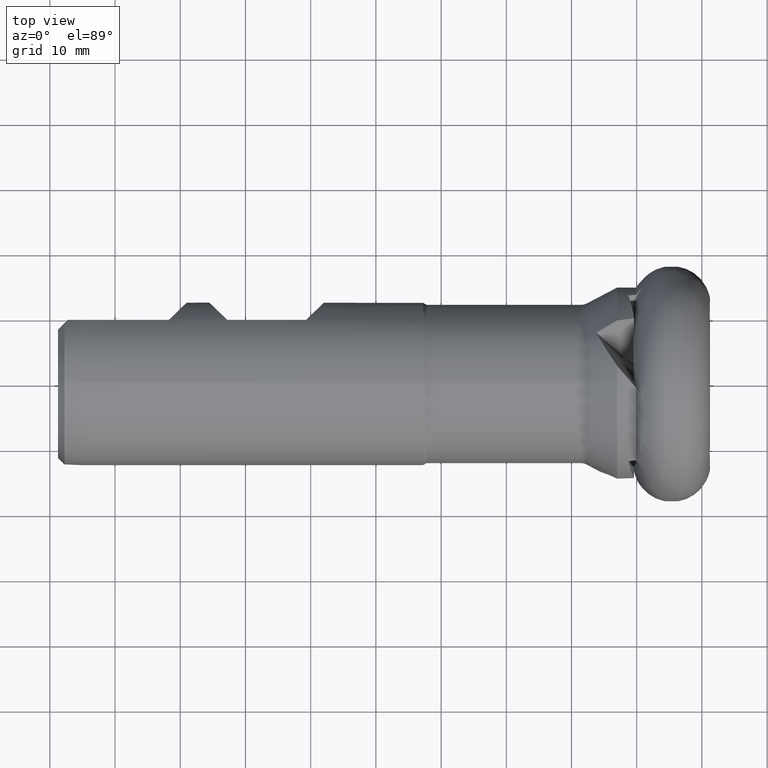
[diagram: clean part render]
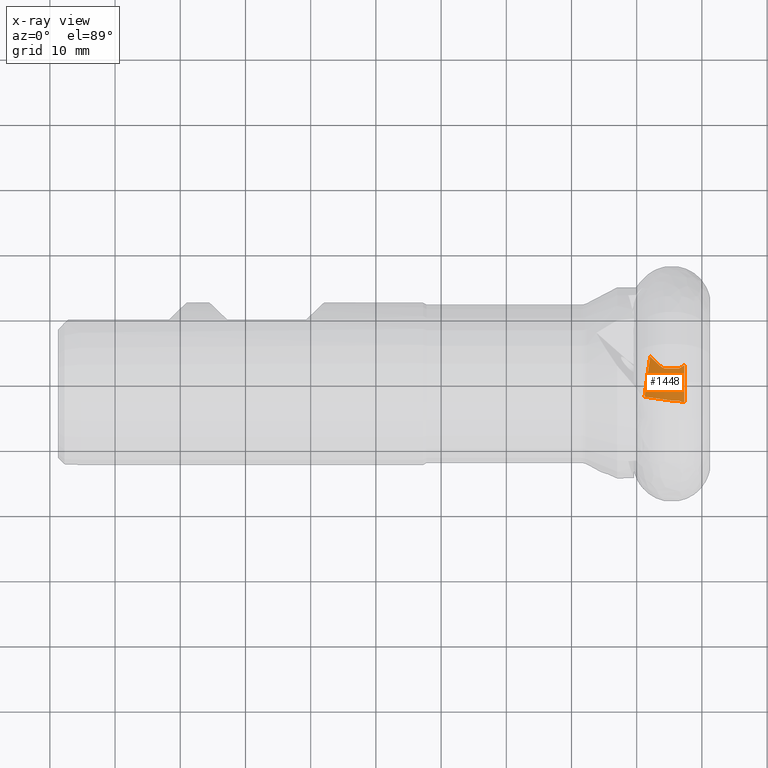
[diagram: x-ray — body ghosted, one internal face saturated and labeled with its STEP entity id]
A machine part, top view, then the same camera in x-ray: the body is ghosted and one INTERNAL B-rep face — a face not visible from any outside direction — is saturated and labeled: STEP entity #1448.
In plain terms, the highlighted planar face has unit normal (0, -0, 1).
Its self-contained STEP definition (entity closure, byte-faithful):
#60 = CARTESIAN_POINT ( 'NONE',  ( -7.927049395022374200, 4.276488123442879500, -5.674999999999998900 ) ) ;
#188 = VERTEX_POINT ( 'NONE', #5334 ) ;
#257 = VECTOR ( 'NONE', #715, 1000.000000000000100 ) ;
#286 = VECTOR ( 'NONE', #308, 999.9999999999998900 ) ;
#306 = VERTEX_POINT ( 'NONE', #60 ) ;
#308 = DIRECTION ( 'NONE',  ( 0.9902680687415703600, -0.1391731009600658000, -7.164989565881888300E-017 ) ) ;
#349 = CARTESIAN_POINT ( 'NONE',  ( -3.795018128566869800, -2.441868605784953200, -5.675000000000003400 ) ) ;
#379 = CARTESIAN_POINT ( 'NONE',  ( -3.507925750679289100, -2.458189465135163700, -5.674999999999996300 ) ) ;
#527 = CARTESIAN_POINT ( 'NONE',  ( -3.116825711614337200, 2.659176578575708700, -5.674999999999997200 ) ) ;
#596 = VERTEX_POINT ( 'NONE', #4766 ) ;
#646 = EDGE_CURVE ( 'NONE', #2391, #3166, #3128, .T. ) ;
#690 = ORIENTED_EDGE ( 'NONE', *, *, #4836, .T. ) ;
#704 = CARTESIAN_POINT ( 'NONE',  ( -3.130213182418695200, -2.658594191422533700, -5.674999999999994500 ) ) ;
#715 = DIRECTION ( 'NONE',  ( 0.9902680687415702500, -0.1391731009600657200, -8.673617379884033000E-017 ) ) ;
#783 = ORIENTED_EDGE ( 'NONE', *, *, #5460, .F. ) ;
#786 = CARTESIAN_POINT ( 'NONE',  ( -2.700000000000002800, -2.719056711179629100, -5.674999999999999800 ) ) ;
#811 = CARTESIAN_POINT ( 'NONE',  ( -4.584473237149222100, 2.448360186430850800, -5.674999999999999800 ) ) ;
#833 = CARTESIAN_POINT ( 'NONE',  ( -5.748785001168230700, 2.462505344465269800, -5.675000000000000700 ) ) ;
#872 = CARTESIAN_POINT ( 'NONE',  ( -5.278302686614056300, 2.453369671326167500, -5.674999999999998900 ) ) ;
#884 = VECTOR ( 'NONE', #1314, 1000.000000000000000 ) ;
#927 = CARTESIAN_POINT ( 'NONE',  ( -2.904097449524851300, 2.799078900394980100, -5.675000000000011400 ) ) ;
#952 = CARTESIAN_POINT ( 'NONE',  ( -3.367830951287358300, 2.522679742282135000, -5.674999999999998000 ) ) ;
#1206 = CARTESIAN_POINT ( 'NONE',  ( -3.987183856976040700, -2.445110270643454000, -5.675000000000003400 ) ) ;
#1255 = CARTESIAN_POINT ( 'NONE',  ( -4.332143144972512500, 2.450413129325212000, -5.674999999999998900 ) ) ;
#1277 = CARTESIAN_POINT ( 'NONE',  ( -3.543915546626220400, 2.452596159926813800, -5.674999999999998000 ) ) ;
#1278 = ORIENTED_EDGE ( 'NONE', *, *, #4975, .F. ) ;
#1292 = CARTESIAN_POINT ( 'NONE',  ( -5.530503027789745100, 2.449003850583708600, -5.674999999999999800 ) ) ;
#1314 = DIRECTION ( 'NONE',  ( 0.0000000000000000000, 1.000000000000000000, 1.207134227299581700E-017 ) ) ;
#1343 = DIRECTION ( 'NONE',  ( 1.000000000000000000, 0.0000000000000000000, -8.589206331781081800E-017 ) ) ;
#1356 = CARTESIAN_POINT ( 'NONE',  ( -3.395792749768561200, 2.507636555540783800, -5.674999999999997200 ) ) ;
#1414 = DIRECTION ( 'NONE',  ( 0.1391731009600657400, 0.9902680687415703600, -0.0000000000000000000 ) ) ;
#1448 = ADVANCED_FACE ( 'Fl�che3', ( #5149 ), #4034, .F. ) ;
#1712 = CARTESIAN_POINT ( 'NONE',  ( -5.089108444960179300, 2.449146315905086400, -5.674999999999999800 ) ) ;
#1733 = CARTESIAN_POINT ( 'NONE',  ( -3.603037048051418000, -2.448063440408133400, -5.675000000000662400 ) ) ;
#1751 = CARTESIAN_POINT ( 'NONE',  ( -3.452570492418392900, 2.479004258722722600, -5.674999999999999800 ) ) ;
#1977 = VECTOR ( 'NONE', #4741, 999.9999999999998900 ) ;
#2095 = LINE ( 'NONE', #4081, #884 ) ;
#2110 = CARTESIAN_POINT ( 'NONE',  ( -4.115268473655298500, -2.450905831316273300, -5.674999999999998900 ) ) ;
#2227 = CARTESIAN_POINT ( 'NONE',  ( -7.927049395022374200, 4.276488123442879500, -5.674999999999998900 ) ) ;
#2353 = CARTESIAN_POINT ( 'NONE',  ( -8.711294831866508700, -1.268327774355765700, -5.674999999999998900 ) ) ;
#2391 = VERTEX_POINT ( 'NONE', #704 ) ;
#2564 = CARTESIAN_POINT ( 'NONE',  ( -7.931925466490141300, 4.277173410597027800, -5.674999999999998900 ) ) ;
#2572 = CARTESIAN_POINT ( 'NONE',  ( -4.371572118352265300, -2.450674111908415200, -5.674999999999997200 ) ) ;
#2611 = CARTESIAN_POINT ( 'NONE',  ( -3.417305001762579700, -2.496557038204093400, -5.674999999999998000 ) ) ;
#2646 = CARTESIAN_POINT ( 'NONE',  ( -3.953663440018550600, 2.445600481359580900, -5.674999999999999800 ) ) ;
#2681 = CARTESIAN_POINT ( 'NONE',  ( -5.890863607234966700, 2.529419374682389900, -5.674999999999995400 ) ) ;
#2788 = ORIENTED_EDGE ( 'NONE', *, *, #4334, .T. ) ;
#2966 = CARTESIAN_POINT ( 'NONE',  ( -8.794798692442547900, -1.862488615600707900, -5.674999999999998900 ) ) ;
#3035 = CARTESIAN_POINT ( 'NONE',  ( -3.358961855400013400, -2.527374090802709800, -5.674999999999997200 ) ) ;
#3100 = CARTESIAN_POINT ( 'NONE',  ( -7.596566397045688900, 3.898724333538343700, -5.675000000000001600 ) ) ;
#3101 = CARTESIAN_POINT ( 'NONE',  ( -3.330002475528241600, -2.543147532725988900, -5.674999999999996300 ) ) ;
#3120 = CARTESIAN_POINT ( 'NONE',  ( -3.669799037096472400, 2.444355654949193800, -5.675000000000003400 ) ) ;
#3128 = LINE ( 'NONE', #2966, #1977 ) ;
#3141 = CARTESIAN_POINT ( 'NONE',  ( -6.159180722849916000, 2.692475147406940400, -5.675000000000000700 ) ) ;
#3155 = AXIS2_PLACEMENT_3D ( 'NONE', #5887, #5424, #1343 ) ;
#3157 = CARTESIAN_POINT ( 'NONE',  ( -5.341380622826671100, 2.454607007969276100, -5.674999999999997200 ) ) ;
#3166 = VERTEX_POINT ( 'NONE', #786 ) ;
#3269 = VERTEX_POINT ( 'NONE', #4627 ) ;
#3520 = CARTESIAN_POINT ( 'NONE',  ( -4.499743228060717500, -2.448923271273626400, -5.675000000000000700 ) ) ;
#3563 = CARTESIAN_POINT ( 'NONE',  ( -5.835790673377279500, 2.498651383668931500, -5.674999999999998900 ) ) ;
#3566 = CARTESIAN_POINT ( 'NONE',  ( -3.539500415944141700, -2.453890993534749900, -5.675000000000664200 ) ) ;
#3601 = CARTESIAN_POINT ( 'NONE',  ( -6.670160600050162500, 3.054321684800215900, -5.674999999999998000 ) ) ;
#3619 = CARTESIAN_POINT ( 'NONE',  ( -6.053122102018128300, 2.624960761166975900, -5.674999999999994500 ) ) ;
#4005 = CARTESIAN_POINT ( 'NONE',  ( -5.625032771401871300, 2.445071183064423600, -5.674999999999997200 ) ) ;
#4023 = CARTESIAN_POINT ( 'NONE',  ( -3.634931831818627200, -2.446053968012244600, -5.674999999999998000 ) ) ;
#4034 = PLANE ( 'NONE',  #3155 ) ;
#4043 = CARTESIAN_POINT ( 'NONE',  ( -3.638233003795901900, 2.445849631260830700, -5.674999999999999800 ) ) ;
#4061 = CARTESIAN_POINT ( 'NONE',  ( -6.471504264827855100, 2.901852150475815700, -5.675000000000000700 ) ) ;
#4080 = CARTESIAN_POINT ( 'NONE',  ( -4.962964042372305200, 2.447496540115066600, -5.674999999999998900 ) ) ;
#4081 = CARTESIAN_POINT ( 'NONE',  ( -2.700000000000002800, 7.599999999999999600, -5.674999999999998900 ) ) ;
#4095 = VERTEX_POINT ( 'NONE', #4440 ) ;
#4334 = EDGE_CURVE ( 'NONE', #306, #4095, #5314, .T. ) ;
#4440 = CARTESIAN_POINT ( 'NONE',  ( -2.700000000000002800, 2.950981464700452900, -5.674999999999998900 ) ) ;
#4465 = CARTESIAN_POINT ( 'NONE',  ( -3.186476261105579200, -2.624199979885578800, -5.674999999999997200 ) ) ;
#4482 = CARTESIAN_POINT ( 'NONE',  ( -4.205977035205166600, 2.451983529472977300, -5.674999999999999800 ) ) ;
#4503 = CARTESIAN_POINT ( 'NONE',  ( -3.482207927801477700, 2.465638047264838900, -5.674999999999997200 ) ) ;
#4594 = CARTESIAN_POINT ( 'NONE',  ( -2.700000000000002800, 2.950981464700452900, -5.674999999999998900 ) ) ;
#4627 = CARTESIAN_POINT ( 'NONE',  ( -4.627905952742797700, -2.448107199353445100, -5.674999999999999800 ) ) ;
#4737 = LINE ( 'NONE', #2564, #257 ) ;
#4741 = DIRECTION ( 'NONE',  ( 0.9902680687415703600, -0.1391731009600658000, -7.164989565881888300E-017 ) ) ;
#4742 = EDGE_LOOP ( 'NONE', ( #5285, #5098, #1278, #5199, #690, #2788, #783 ) ) ;
#4766 = CARTESIAN_POINT ( 'NONE',  ( -8.794798692442547900, -1.862488615600707900, -5.674999999999998900 ) ) ;
#4836 = EDGE_CURVE ( 'NONE', #188, #306, #4737, .T. ) ;
#4842 = CARTESIAN_POINT ( 'NONE',  ( -8.794798692442547900, -1.862488615600707900, -5.674999999999998900 ) ) ;
#4865 = CARTESIAN_POINT ( 'NONE',  ( -3.730882692505232500, -2.441931219400129000, -5.674999999999996300 ) ) ;
#4903 = CARTESIAN_POINT ( 'NONE',  ( -3.130213182418695200, -2.658594191422533700, -5.674999999999994500 ) ) ;
#4926 = CARTESIAN_POINT ( 'NONE',  ( -4.710638279944150000, 2.447335399127601000, -5.674999999999999800 ) ) ;
#4944 = CARTESIAN_POINT ( 'NONE',  ( -3.827511684433929000, 2.439830648188313000, -5.675000000000002500 ) ) ;
#4945 = CARTESIAN_POINT ( 'NONE',  ( -4.627905952742797700, -2.448107199353445100, -5.674999999999999800 ) ) ;
#4952 = VECTOR ( 'NONE', #1414, 999.9999999999998900 ) ;
#4962 = CARTESIAN_POINT ( 'NONE',  ( -3.575354863382193200, 2.450348516656987800, -5.675000000000000700 ) ) ;
#4975 = EDGE_CURVE ( 'NONE', #596, #3269, #5773, .T. ) ;
#4997 = CARTESIAN_POINT ( 'NONE',  ( -5.718991100686262800, 2.453530788147132700, -5.674999999999998900 ) ) ;
#5012 = EDGE_CURVE ( 'NONE', #596, #188, #5108, .T. ) ;
#5098 = ORIENTED_EDGE ( 'NONE', *, *, #5337, .T. ) ;
#5108 = LINE ( 'NONE', #2353, #4952 ) ;
#5149 = FACE_OUTER_BOUND ( 'NONE', #4742, .T. ) ;
#5199 = ORIENTED_EDGE ( 'NONE', *, *, #5012, .T. ) ;
#5285 = ORIENTED_EDGE ( 'NONE', *, *, #646, .F. ) ;
#5314 = B_SPLINE_CURVE_WITH_KNOTS ( 'NONE', 3,
 ( #2227, #3100, #5459, #3601, #4061, #3141, #3619, #2681, #3563, #833, #4997, #5909, #4005, #1292, #5414, #3157, #872, #1712, #4080, #4926, #811, #1255, #4482, #2646, #4944, #3120, #4043, #4962, #1277, #4503, #1751, #1356, #952, #527, #927, #4594 ),
 .UNSPECIFIED., .F., .F.,
 ( 4, 2, 2, 2, 2, 2, 2, 2, 2, 2, 2, 2, 2, 2, 2, 2, 2, 4 ),
 ( 5.645054734023351700E-005, 0.001559348262560192900, 0.002310797120170173100, 0.002686521548975163400, 0.002874383763377657400, 0.002968314870578903800, 0.003062245977780150600, 0.003250108192182646800, 0.003437970406585142600, 0.003813694835390135400, 0.004189419264195127400, 0.004565143693000120600, 0.004940868121805113000, 0.005034799229006361100, 0.005128730336207609200, 0.005222661443408857300, 0.005316592550610105400, 0.006068041408220098100 ),
 .UNSPECIFIED. ) ;
#5333 = CARTESIAN_POINT ( 'NONE',  ( -3.446626779846595900, -2.480017358261832800, -5.674999999999998900 ) ) ;
#5334 = CARTESIAN_POINT ( 'NONE',  ( -7.931925466490141300, 4.277173410597027800, -5.674999999999999800 ) ) ;
#5337 = EDGE_CURVE ( 'NONE', #2391, #3269, #5580, .T. ) ;
#5372 = CARTESIAN_POINT ( 'NONE',  ( -3.243496428637489000, -2.591107758260199100, -5.674999999999999800 ) ) ;
#5414 = CARTESIAN_POINT ( 'NONE',  ( -5.467533770552415200, 2.453443915515372000, -5.674999999999998900 ) ) ;
#5424 = DIRECTION ( 'NONE',  ( 8.589206331781081800E-017, -1.207134227299581700E-017, 1.000000000000000000 ) ) ;
#5459 = CARTESIAN_POINT ( 'NONE',  ( -7.243802332838081200, 3.541824763521666000, -5.674999999999999800 ) ) ;
#5460 = EDGE_CURVE ( 'NONE', #3166, #4095, #2095, .T. ) ;
#5580 = B_SPLINE_CURVE_WITH_KNOTS ( 'NONE', 3,
 ( #4903, #4465, #5372, #3101, #3035, #2611, #5333, #379, #3566, #1733, #4023, #4865, #349, #1206, #2110, #2572, #3520, #4945 ),
 .UNSPECIFIED., .F., .F.,
 ( 4, 2, 2, 2, 2, 2, 2, 2, 4 ),
 ( 0.0001902781105555479200, 0.0003880596162926092900, 0.0004869503691611398000, 0.0005858411220296701500, 0.0006847318748982006000, 0.0007836226277667310500, 0.0009814041335037932600, 0.001376967144977917500, 0.001772530156452042100 ),
 .UNSPECIFIED. ) ;
#5773 = LINE ( 'NONE', #4842, #286 ) ;
#5887 = CARTESIAN_POINT ( 'NONE',  ( -8.711294831866508700, -1.268327774355765700, -5.674999999999998900 ) ) ;
#5909 = CARTESIAN_POINT ( 'NONE',  ( -5.656935176548744300, 2.445161501118519700, -5.674999999999998900 ) ) ;